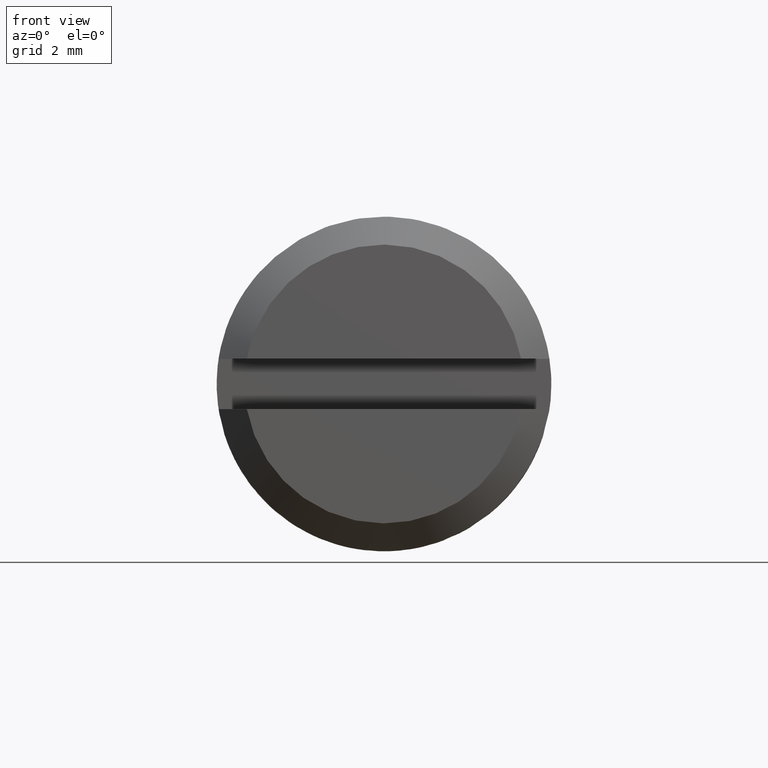
[diagram: clean part render]
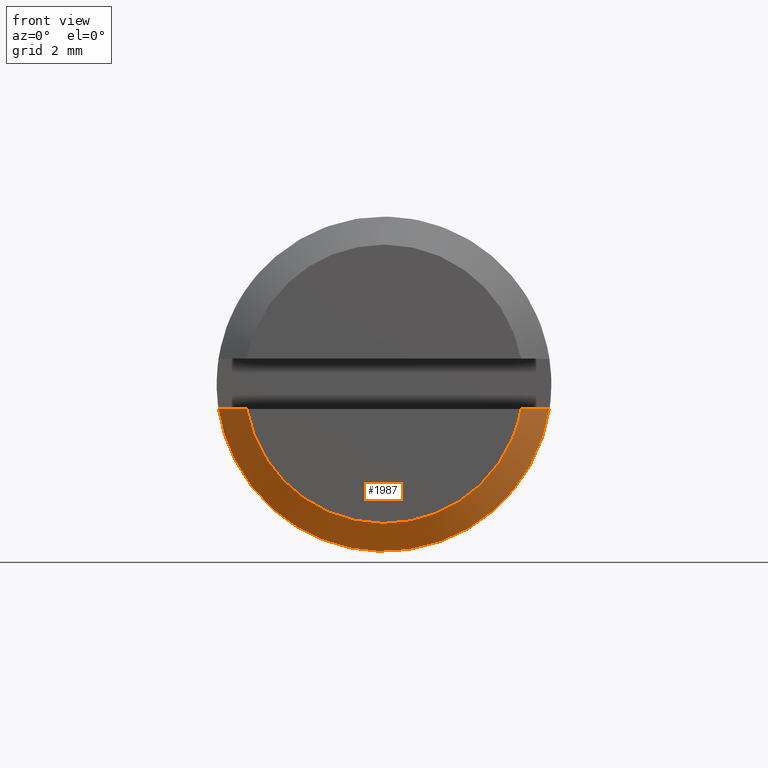
[diagram: same view with one face highlighted and labeled with its STEP entity id]
A machine part, front view. The second image highlights one B-rep face of the part: STEP entity #1987.
In plain terms, the highlighted face is a freeform B-spline surface patch.
Its self-contained STEP definition (entity closure, byte-faithful):
#1644=CARTESIAN_POINT('',(-7.0,-5.932115979985531,-0.900000000000000));
#1645=VERTEX_POINT('',#1644);
#1651=CARTESIAN_POINT('',(-7.0,5.932115979985531,-0.900000000000000));
#1652=VERTEX_POINT('',#1651);
#1653=CARTESIAN_POINT('',(-7.0,-5.932115979985533,-0.899999999999996));
#1654=CARTESIAN_POINT('',(-7.000000000000001,-5.158361721726432,-5.999999999999838));
#1655=CARTESIAN_POINT('',(-7.0,0.0,-5.999999999999838));
#1656=CARTESIAN_POINT('',(-7.000000000000001,5.158361721726429,-5.999999999999838));
#1657=CARTESIAN_POINT('',(-7.0,5.932115979985533,-0.899999999999999));
#1665=(BOUNDED_CURVE()B_SPLINE_CURVE(2,(#1653,#1654,#1655,#1656,#1657),.UNSPECIFIED.,.F.,.U.)B_SPLINE_CURVE_WITH_KNOTS((3,2,3),(0.0,0.500000000000000,1.0),.UNSPECIFIED.)CURVE()GEOMETRIC_REPRESENTATION_ITEM()RATIONAL_B_SPLINE_CURVE((1.0,0.758287544405164,1.0,0.758287544405164,1.0))REPRESENTATION_ITEM(''));
#1666=EDGE_CURVE('',#1645,#1652,#1665,.T.);
#1811=CARTESIAN_POINT('',(-8.0,4.918333050943140,-0.900000000000000));
#1812=VERTEX_POINT('',#1811);
#1813=CARTESIAN_POINT('',(-8.0,4.918333050943140,-0.900000000000000));
#1814=CARTESIAN_POINT('',(-7.667146145494495,5.256736008597890,-0.900000000000000));
#1815=CARTESIAN_POINT('',(-7.333719979722740,5.594571625406596,-0.900000000000000));
#1816=CARTESIAN_POINT('',(-7.0,5.932115979985531,-0.900000000000000));
#1817=B_SPLINE_CURVE_WITH_KNOTS('',3,(#1813,#1814,#1815,#1816),.UNSPECIFIED.,.F.,.U.,(4,4),(0.909439502726439,1.0),.UNSPECIFIED.);
#1818=EDGE_CURVE('',#1812,#1652,#1817,.T.);
#1820=CARTESIAN_POINT('',(-8.0,-4.918333050943140,-0.900000000000000));
#1821=VERTEX_POINT('',#1820);
#1827=CARTESIAN_POINT('',(-7.0,-5.932115979985531,-0.900000000000000));
#1828=CARTESIAN_POINT('',(-7.333720727770897,-5.594570497252879,-0.900000000000000));
#1829=CARTESIAN_POINT('',(-7.667147595700009,-5.256735125071742,-0.900000000000000));
#1830=CARTESIAN_POINT('',(-8.0,-4.918333050943140,-0.900000000000000));
#1831=B_SPLINE_CURVE_WITH_KNOTS('',3,(#1827,#1828,#1829,#1830),.UNSPECIFIED.,.F.,.U.,(4,4),(0.0,0.089797117276054),.UNSPECIFIED.);
#1832=EDGE_CURVE('',#1645,#1821,#1831,.T.);
#1949=CARTESIAN_POINT('',(-8.025000000000000,4.939248115005247,-0.595359604287113));
#1950=CARTESIAN_POINT('',(-6.974374999999999,5.982322999593666,-0.721088184036725));
#1951=CARTESIAN_POINT('',(-8.025000000000000,4.398461525828770,-5.081856709524321));
#1952=CARTESIAN_POINT('',(-6.974374999999999,5.327332609361201,-6.155047806096013));
#1953=CARTESIAN_POINT('',(-8.025000000000000,-0.119212734302167,-4.973571485761370));
#1954=CARTESIAN_POINT('',(-6.974374999999999,-0.144388187362712,-6.023894810832367));
#1955=CARTESIAN_POINT('',(-8.025000000000000,-4.636886994433102,-4.865286261998418));
#1956=CARTESIAN_POINT('',(-6.974374999999999,-5.616108984086624,-5.892741815568721));
#1957=CARTESIAN_POINT('',(-8.025000000000000,-4.962100183463617,-0.358031799244447));
#1958=CARTESIAN_POINT('',(-6.974374999999999,-6.010000988539288,-0.433641278456782));
#1966=(BOUNDED_SURFACE()B_SPLINE_SURFACE(1,2,((#1949,#1951,#1953,#1955,#1957),(#1950,#1952,#1954,#1956,#1958)),.UNSPECIFIED.,.F.,.F.,.U.)B_SPLINE_SURFACE_WITH_KNOTS((2,2),(3,2,3),(0.0,1.0),(0.0,9.312465328468836,18.624930656937671),.UNSPECIFIED.)GEOMETRIC_REPRESENTATION_ITEM()RATIONAL_B_SPLINE_SURFACE(((1.0,0.740218127486832,1.0,0.740218127486832,1.0),(1.0,0.740218127486832,1.0,0.740218127486832,1.0)))REPRESENTATION_ITEM('')SURFACE());
#1967=ORIENTED_EDGE('',*,*,#1666,.F.);
#1968=ORIENTED_EDGE('',*,*,#1832,.T.);
#1969=CARTESIAN_POINT('',(-8.0,4.918333050943145,-0.900000000000001));
#1970=CARTESIAN_POINT('',(-8.0,4.168078856731363,-4.999999999999838));
#1971=CARTESIAN_POINT('',(-8.0,0.0,-4.999999999999838));
#1972=CARTESIAN_POINT('',(-8.0,-4.168078856731361,-4.999999999999838));
#1973=CARTESIAN_POINT('',(-8.0,-4.918333050943144,-0.900000000000003));
#1981=(BOUNDED_CURVE()B_SPLINE_CURVE(2,(#1969,#1970,#1971,#1972,#1973),.UNSPECIFIED.,.F.,.U.)B_SPLINE_CURVE_WITH_KNOTS((3,2,3),(0.0,0.500000000000000,1.0),.UNSPECIFIED.)CURVE()GEOMETRIC_REPRESENTATION_ITEM()RATIONAL_B_SPLINE_CURVE((1.0,0.768114574786871,1.0,0.768114574786871,1.0))REPRESENTATION_ITEM(''));
#1982=EDGE_CURVE('',#1812,#1821,#1981,.T.);
#1983=ORIENTED_EDGE('',*,*,#1982,.F.);
#1984=ORIENTED_EDGE('',*,*,#1818,.T.);
#1985=EDGE_LOOP('',(#1967,#1968,#1983,#1984));
#1986=FACE_OUTER_BOUND('',#1985,.T.);
#1987=ADVANCED_FACE('',(#1986),#1966,.T.);